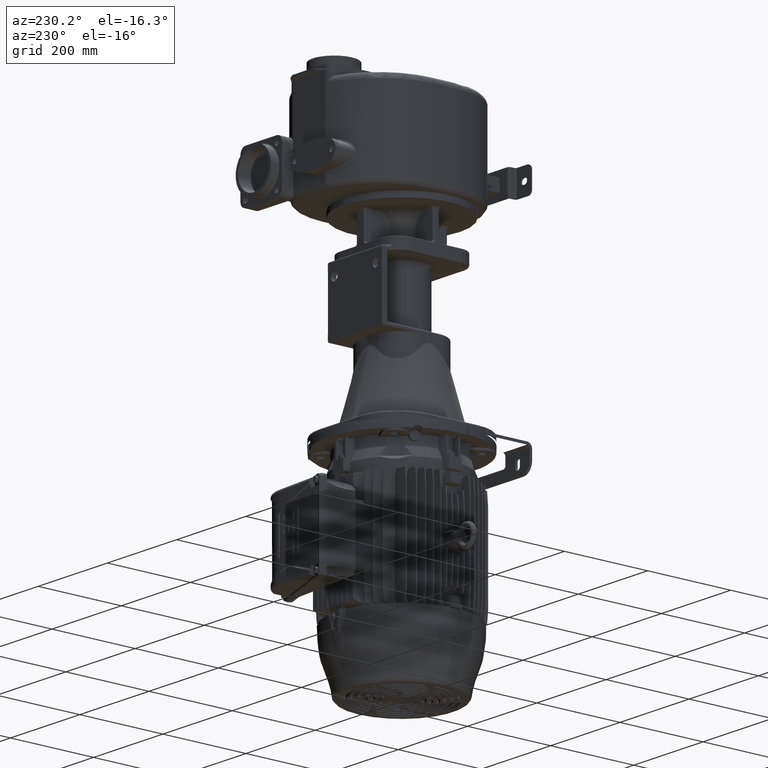
[diagram: clean part render]
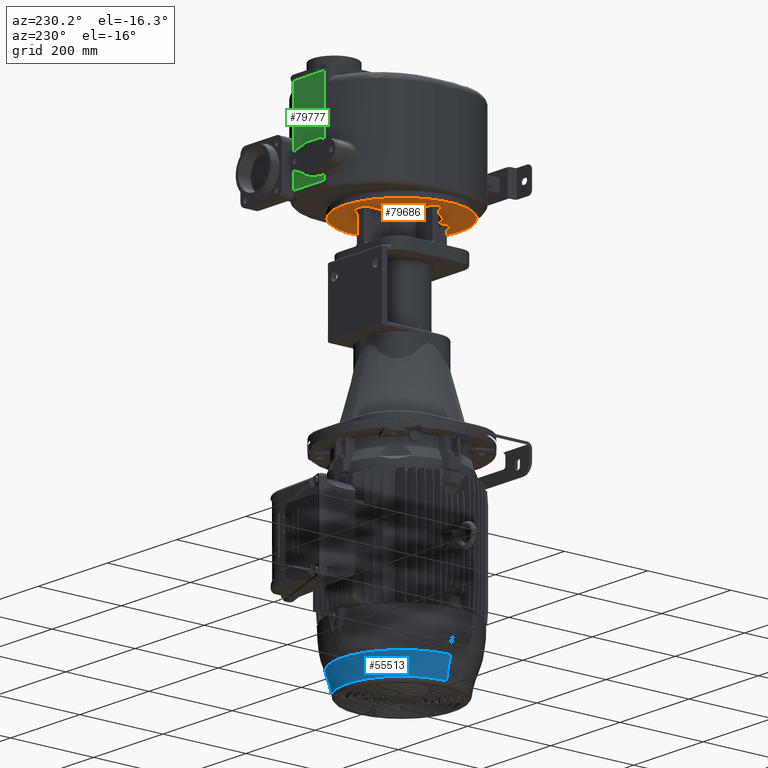
[diagram: same view with three faces highlighted in distinct colors, each labeled with its STEP entity id]
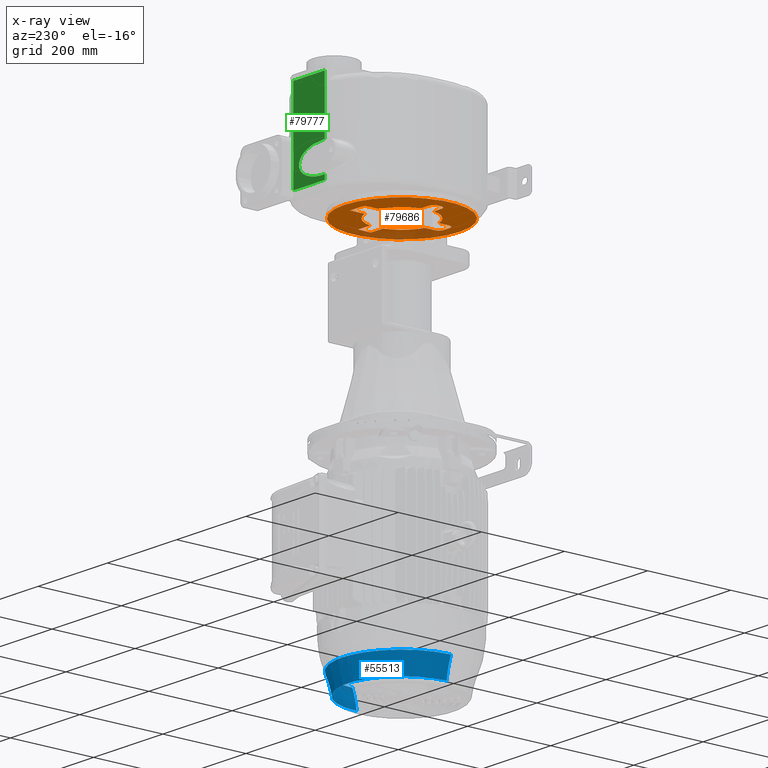
[diagram: x-ray of the same camera — body ghosted, the three highlighted faces saturated]
A machine part, auxiliary view with three faces highlighted in distinct colors.
The next image is the same camera in x-ray (body ghosted, the three faces saturated) — at least one of them is partly hidden behind the body in this view.
Their STEP definitions:

[orange] entity #79686 — the highlighted planar face has unit normal (0, 0, -1).
#24210=CARTESIAN_POINT('',(-2.296255940069E-14,1.58E2,-7.35E1));
#24211=DIRECTION('',(0.E0,0.E0,1.E0));
#24212=DIRECTION('',(0.E0,-1.E0,0.E0));
#24213=AXIS2_PLACEMENT_3D('',#24210,#24211,#24212);
#24215=CARTESIAN_POINT('',(-2.296255940069E-14,1.58E2,-7.35E1));
#24216=DIRECTION('',(0.E0,0.E0,1.E0));
#24217=DIRECTION('',(0.E0,1.E0,0.E0));
#24218=AXIS2_PLACEMENT_3D('',#24215,#24216,#24217);
#24220=DIRECTION('',(1.051396271926E-13,1.E0,1.000965111528E-8));
#24221=VECTOR('',#24220,2.385604670862E1);
#24222=CARTESIAN_POINT('',(-2.05E1,2.301439532913E2,-7.350000023879E1));
#24223=LINE('',#24222,#24221);
#24224=DIRECTION('',(1.E0,7.644459777854E-14,0.E0));
#24225=VECTOR('',#24224,2.899999999992E1);
#24226=CARTESIAN_POINT('',(-8.499999999919E0,2.66E2,-7.35E1));
#24227=LINE('',#24226,#24225);
#24228=DIRECTION('',(0.E0,-1.E0,-6.653160300334E-9));
#24229=VECTOR('',#24228,3.585604670857E1);
#24230=CARTESIAN_POINT('',(2.05E1,2.66E2,-7.35E1));
#24231=LINE('',#24230,#24229);
#24232=CARTESIAN_POINT('',(-2.296255940069E-14,1.58E2,-7.35E1));
#24233=DIRECTION('',(0.E0,0.E0,1.E0));
#24234=DIRECTION('',(9.784114108098E-1,2.066666668750E-1,0.E0));
#24235=AXIS2_PLACEMENT_3D('',#24232,#24233,#24234);
#24237=DIRECTION('',(1.E0,0.E0,7.285471637682E-9));
#24238=VECTOR('',#24237,3.461914420528E1);
#24239=CARTESIAN_POINT('',(7.338085579472E1,1.735E2,-7.350000025222E1));
#24240=LINE('',#24239,#24238);
#24241=DIRECTION('',(0.E0,-1.E0,0.E0));
#24242=VECTOR('',#24241,3.1E1);
#24243=CARTESIAN_POINT('',(1.08E2,1.735E2,-7.35E1));
#24244=LINE('',#24243,#24242);
#24245=DIRECTION('',(-1.E0,0.E0,-7.282940138331E-9));
#24246=VECTOR('',#24245,3.461914420529E1);
#24247=CARTESIAN_POINT('',(1.08E2,1.425E2,-7.35E1));
#24248=LINE('',#24247,#24246);
#24249=CARTESIAN_POINT('',(-2.296255940069E-14,1.58E2,-7.35E1));
#24250=DIRECTION('',(0.E0,0.E0,1.E0));
#24251=DIRECTION('',(2.733333336737E-1,-9.619193774443E-1,0.E0));
#24252=AXIS2_PLACEMENT_3D('',#24249,#24250,#24251);
#24254=DIRECTION('',(-1.054374731619E-13,-1.E0,1.000964396698E-8));
#24255=VECTOR('',#24254,2.385604670862E1);
#24256=CARTESIAN_POINT('',(2.05E1,8.585604670870E1,-7.350000023879E1));
#24257=LINE('',#24256,#24255);
#24258=DIRECTION('',(-1.E0,1.839051786690E-14,0.E0));
#24259=VECTOR('',#24258,1.699999999985E1);
#24260=CARTESIAN_POINT('',(8.499999999918E0,5.E1,-7.35E1));
#24261=LINE('',#24260,#24259);
#24262=DIRECTION('',(-9.218332752489E-14,1.E0,-9.999807306049E-9));
#24263=VECTOR('',#24262,2.385604670849E1);
#24264=CARTESIAN_POINT('',(-2.05E1,6.200000000008E1,-7.35E1));
#24265=LINE('',#24264,#24263);
#24266=CARTESIAN_POINT('',(-2.296255940069E-14,1.58E2,-7.35E1));
#24267=DIRECTION('',(0.E0,0.E0,-1.E0));
#24268=DIRECTION('',(-2.733333336719E-1,-9.619193774448E-1,0.E0));
#24269=AXIS2_PLACEMENT_3D('',#24266,#24267,#24268);
#24271=DIRECTION('',(-1.E0,1.105749363099E-13,1.115059270123E-8));
#24272=VECTOR('',#24271,2.261914420521E1);
#24273=CARTESIAN_POINT('',(-7.338085579472E1,1.425E2,-7.350000025222E1));
#24274=LINE('',#24273,#24272);
#24275=DIRECTION('',(4.263256414655E-14,1.E0,0.E0));
#24276=VECTOR('',#24275,6.999999999846E0);
#24277=CARTESIAN_POINT('',(-1.08E2,1.545000000001E2,-7.35E1));
#24278=LINE('',#24277,#24276);
#24279=DIRECTION('',(1.E0,9.800960263834E-14,-1.114671692406E-8));
#24280=VECTOR('',#24279,2.261914420521E1);
#24281=CARTESIAN_POINT('',(-9.599999999992E1,1.735E2,-7.35E1));
#24282=LINE('',#24281,#24280);
#24283=CARTESIAN_POINT('',(-2.296255940069E-14,1.58E2,-7.35E1));
#24284=DIRECTION('',(0.E0,0.E0,-1.E0));
#24285=DIRECTION('',(-9.784114108098E-1,2.066666668751E-1,0.E0));
#24286=AXIS2_PLACEMENT_3D('',#24283,#24284,#24285);
#29366=CARTESIAN_POINT('',(-7.338085579471E1,1.735E2,-7.350000025213E1));
#29489=CARTESIAN_POINT('',(-2.05E1,2.301439532913E2,-7.350000023879E1));
#29683=CARTESIAN_POINT('',(-8.5E0,2.54E2,-7.35E1));
#29684=DIRECTION('',(0.E0,0.E0,1.E0));
#29685=DIRECTION('',(0.E0,1.E0,0.E0));
#29686=AXIS2_PLACEMENT_3D('',#29683,#29684,#29685);
#29964=CARTESIAN_POINT('',(2.05E1,2.301439532914E2,-7.350000023856E1));
#30087=CARTESIAN_POINT('',(7.338085579472E1,1.735E2,-7.350000025222E1));
#30429=CARTESIAN_POINT('',(-9.6E1,1.615E2,-7.35E1));
#30430=DIRECTION('',(0.E0,0.E0,1.E0));
#30431=DIRECTION('',(0.E0,1.E0,0.E0));
#30432=AXIS2_PLACEMENT_3D('',#30429,#30430,#30431);
#30449=CARTESIAN_POINT('',(-9.6E1,1.545E2,-7.35E1));
#30450=DIRECTION('',(0.E0,0.E0,1.E0));
#30451=DIRECTION('',(-1.E0,0.E0,0.E0));
#30452=AXIS2_PLACEMENT_3D('',#30449,#30450,#30451);
#30637=CARTESIAN_POINT('',(-2.05E1,8.585604670857E1,-7.350000023856E1));
#30760=CARTESIAN_POINT('',(-7.338085579472E1,1.425E2,-7.350000025222E1));
#30904=CARTESIAN_POINT('',(-8.5E0,6.2E1,-7.35E1));
#30905=DIRECTION('',(0.E0,0.E0,1.E0));
#30906=DIRECTION('',(-1.E0,0.E0,0.E0));
#30907=AXIS2_PLACEMENT_3D('',#30904,#30905,#30906);
#30924=CARTESIAN_POINT('',(8.5E0,6.2E1,-7.35E1));
#30925=DIRECTION('',(0.E0,0.E0,1.E0));
#30926=DIRECTION('',(0.E0,-1.E0,0.E0));
#30927=AXIS2_PLACEMENT_3D('',#30924,#30925,#30926);
#31248=CARTESIAN_POINT('',(2.05E1,8.585604670870E1,-7.350000023879E1));
#43688=CARTESIAN_POINT('',(-4.567421827776E-14,1.9E1,-7.35E1));
#43689=CARTESIAN_POINT('',(1.677168998453E-14,2.97E2,-7.35E1));
#43690=VERTEX_POINT('',#43688);
#43691=VERTEX_POINT('',#43689);
#43693=VERTEX_POINT('',#31248);
#43696=VERTEX_POINT('',#30637);
#43701=VERTEX_POINT('',#30760);
#43704=VERTEX_POINT('',#29366);
#43709=VERTEX_POINT('',#29489);
#43712=VERTEX_POINT('',#29964);
#43717=VERTEX_POINT('',#30087);
#43722=CARTESIAN_POINT('',(7.338085581073E1,1.424999999844E2,-7.35E1));
#43723=VERTEX_POINT('',#43722);
#43724=CARTESIAN_POINT('',(2.05E1,6.200000000007E1,-7.35E1));
#43725=VERTEX_POINT('',#43724);
#43726=CARTESIAN_POINT('',(8.499999999918E0,5.E1,-7.35E1));
#43727=CARTESIAN_POINT('',(-8.499999999927E0,5.E1,-7.35E1));
#43728=VERTEX_POINT('',#43726);
#43729=VERTEX_POINT('',#43727);
#43730=CARTESIAN_POINT('',(-2.05E1,6.200000000008E1,-7.35E1));
#43731=VERTEX_POINT('',#43730);
#43732=CARTESIAN_POINT('',(-9.599999999993E1,1.425E2,-7.35E1));
#43733=VERTEX_POINT('',#43732);
#43734=CARTESIAN_POINT('',(-1.08E2,1.545000000001E2,-7.35E1));
#43735=CARTESIAN_POINT('',(-1.08E2,1.614999999999E2,-7.35E1));
#43736=VERTEX_POINT('',#43734);
#43737=VERTEX_POINT('',#43735);
#43738=CARTESIAN_POINT('',(-9.599999999992E1,1.735E2,-7.35E1));
#43739=VERTEX_POINT('',#43738);
#43740=CARTESIAN_POINT('',(-2.05E1,2.539999999999E2,-7.35E1));
#43741=VERTEX_POINT('',#43740);
#43742=CARTESIAN_POINT('',(-8.499999999919E0,2.66E2,-7.35E1));
#43743=CARTESIAN_POINT('',(2.05E1,2.66E2,-7.35E1));
#43744=VERTEX_POINT('',#43742);
#43745=VERTEX_POINT('',#43743);
#43746=CARTESIAN_POINT('',(1.08E2,1.735E2,-7.35E1));
#43747=VERTEX_POINT('',#43746);
#43748=CARTESIAN_POINT('',(1.08E2,1.425E2,-7.35E1));
#43749=VERTEX_POINT('',#43748);
#79632=CARTESIAN_POINT('',(-2.296255940069E-14,1.58E2,-7.35E1));
#79633=DIRECTION('',(0.E0,0.E0,-1.E0));
#79634=DIRECTION('',(0.E0,1.E0,0.E0));
#79635=AXIS2_PLACEMENT_3D('',#79632,#79633,#79634);
#79636=PLANE('',#79635);
#79638=ORIENTED_EDGE('',*,*,#79637,.T.);
#79640=ORIENTED_EDGE('',*,*,#79639,.T.);
#79641=EDGE_LOOP('',(#79638,#79640));
#79642=FACE_OUTER_BOUND('',#79641,.F.);
#79644=ORIENTED_EDGE('',*,*,#79643,.T.);
#79646=ORIENTED_EDGE('',*,*,#79645,.F.);
#79648=ORIENTED_EDGE('',*,*,#79647,.T.);
#79650=ORIENTED_EDGE('',*,*,#79649,.T.);
#79652=ORIENTED_EDGE('',*,*,#79651,.F.);
#79654=ORIENTED_EDGE('',*,*,#79653,.T.);
#79655=ORIENTED_EDGE('',*,*,#79623,.T.);
#79657=ORIENTED_EDGE('',*,*,#79656,.T.);
#79659=ORIENTED_EDGE('',*,*,#79658,.F.);
#79661=ORIENTED_EDGE('',*,*,#79660,.T.);
#79663=ORIENTED_EDGE('',*,*,#79662,.F.);
#79665=ORIENTED_EDGE('',*,*,#79664,.T.);
#79667=ORIENTED_EDGE('',*,*,#79666,.F.);
#79669=ORIENTED_EDGE('',*,*,#79668,.T.);
#79671=ORIENTED_EDGE('',*,*,#79670,.T.);
#79673=ORIENTED_EDGE('',*,*,#79672,.T.);
#79675=ORIENTED_EDGE('',*,*,#79674,.F.);
#79677=ORIENTED_EDGE('',*,*,#79676,.T.);
#79679=ORIENTED_EDGE('',*,*,#79678,.F.);
#79681=ORIENTED_EDGE('',*,*,#79680,.T.);
#79683=ORIENTED_EDGE('',*,*,#79682,.T.);
#79684=EDGE_LOOP('',(#79644,#79646,#79648,#79650,#79652,#79654,#79655,#79657,
#79659,#79661,#79663,#79665,#79667,#79669,#79671,#79673,#79675,#79677,#79679,
#79681,#79683));
#79685=FACE_BOUND('',#79684,.F.);
#79686=ADVANCED_FACE('',(#79642,#79685),#79636,.T.);
#24214=CIRCLE('',#24213,1.39E2);
#24219=CIRCLE('',#24218,1.39E2);
#24236=CIRCLE('',#24235,7.5E1);
#24253=CIRCLE('',#24252,7.5E1);
#24270=CIRCLE('',#24269,7.5E1);
#24287=CIRCLE('',#24286,7.5E1);
#29687=CIRCLE('',#29686,1.2E1);
#30433=CIRCLE('',#30432,1.2E1);
#30453=CIRCLE('',#30452,1.2E1);
#30908=CIRCLE('',#30907,1.2E1);
#30928=CIRCLE('',#30927,1.2E1);
#79623=EDGE_CURVE('',#43747,#43749,#24244,.T.);
#79637=EDGE_CURVE('',#43690,#43691,#24214,.T.);
#79639=EDGE_CURVE('',#43691,#43690,#24219,.T.);
#79643=EDGE_CURVE('',#43709,#43741,#24223,.T.);
#79645=EDGE_CURVE('',#43744,#43741,#29687,.T.);
#79647=EDGE_CURVE('',#43744,#43745,#24227,.T.);
#79649=EDGE_CURVE('',#43745,#43712,#24231,.T.);
#79651=EDGE_CURVE('',#43717,#43712,#24236,.T.);
#79653=EDGE_CURVE('',#43717,#43747,#24240,.T.);
#79656=EDGE_CURVE('',#43749,#43723,#24248,.T.);
#79658=EDGE_CURVE('',#43693,#43723,#24253,.T.);
#79660=EDGE_CURVE('',#43693,#43725,#24257,.T.);
#79662=EDGE_CURVE('',#43728,#43725,#30928,.T.);
#79664=EDGE_CURVE('',#43728,#43729,#24261,.T.);
#79666=EDGE_CURVE('',#43731,#43729,#30908,.T.);
#79668=EDGE_CURVE('',#43731,#43696,#24265,.T.);
#79670=EDGE_CURVE('',#43696,#43701,#24270,.T.);
#79672=EDGE_CURVE('',#43701,#43733,#24274,.T.);
#79674=EDGE_CURVE('',#43736,#43733,#30453,.T.);
#79676=EDGE_CURVE('',#43736,#43737,#24278,.T.);
#79678=EDGE_CURVE('',#43739,#43737,#30433,.T.);
#79680=EDGE_CURVE('',#43739,#43704,#24282,.T.);
#79682=EDGE_CURVE('',#43704,#43709,#24287,.T.);

[blue] entity #55513 — the highlighted toroidal blend (fillet) surface has major radius 308.616 mm and minor (blend) radius 180 mm.
#5170=CARTESIAN_POINT('',(-3.077530922771E2,1.58E2,-1.014636955690E3));
#5171=DIRECTION('',(0.E0,-1.E0,0.E0));
#5172=DIRECTION('',(9.927184655179E-1,0.E0,1.204576615238E-1));
#5173=AXIS2_PLACEMENT_3D('',#5170,#5171,#5172);
#5175=CARTESIAN_POINT('',(8.634161712648E-1,1.58E2,-9.453489229696E2));
#5176=DIRECTION('',(0.E0,0.E0,-1.E0));
#5177=DIRECTION('',(-1.E0,0.E0,0.E0));
#5178=AXIS2_PLACEMENT_3D('',#5175,#5176,#5177);
#5185=CARTESIAN_POINT('',(3.094799246197E2,1.58E2,-1.014636955690E3));
#5186=DIRECTION('',(0.E0,1.E0,0.E0));
#5187=DIRECTION('',(-9.927184655179E-1,0.E0,1.204576615238E-1));
#5188=AXIS2_PLACEMENT_3D('',#5185,#5186,#5187);
#8276=CARTESIAN_POINT('',(8.634161712647E-1,1.58E2,-9.929545766152E2));
#8277=DIRECTION('',(0.E0,0.E0,-1.E0));
#8278=DIRECTION('',(-1.E0,0.E0,0.E0));
#8279=AXIS2_PLACEMENT_3D('',#8276,#8277,#8278);
#44594=CARTESIAN_POINT('',(1.307906008264E2,1.58E2,-9.929545766152E2));
#44596=VERTEX_POINT('',#44594);
#44818=CARTESIAN_POINT('',(-1.290637684839E2,1.58E2,-9.929545766152E2));
#44819=VERTEX_POINT('',#44818);
#45519=CARTESIAN_POINT('',(1.433499498355E2,1.58E2,-9.453489229696E2));
#45520=CARTESIAN_POINT('',(-1.416231174929E2,1.58E2,-9.453489229696E2));
#45521=VERTEX_POINT('',#45519);
#45522=VERTEX_POINT('',#45520);
#55499=CARTESIAN_POINT('',(8.634161712647E-1,1.58E2,-1.014636955690E3));
#55500=DIRECTION('',(0.E0,0.E0,1.E0));
#55501=DIRECTION('',(1.E0,0.E0,0.E0));
#55502=AXIS2_PLACEMENT_3D('',#55499,#55500,#55501);
#55503=TOROIDAL_SURFACE('',#55502,3.086165084484E2,1.8E2);
#55505=ORIENTED_EDGE('',*,*,#55504,.F.);
#55507=ORIENTED_EDGE('',*,*,#55506,.T.);
#55509=ORIENTED_EDGE('',*,*,#55508,.T.);
#55510=ORIENTED_EDGE('',*,*,#55431,.F.);
#55511=EDGE_LOOP('',(#55505,#55507,#55509,#55510));
#55512=FACE_OUTER_BOUND('',#55511,.F.);
#55513=ADVANCED_FACE('',(#55512),#55503,.F.);
#5174=CIRCLE('',#5173,1.8E2);
#5179=CIRCLE('',#5178,1.424865336642E2);
#5189=CIRCLE('',#5188,1.8E2);
#8280=CIRCLE('',#8279,1.299271846552E2);
#55431=EDGE_CURVE('',#45522,#45521,#5179,.T.);
#55504=EDGE_CURVE('',#44819,#45522,#5174,.T.);
#55506=EDGE_CURVE('',#44819,#44596,#8280,.T.);
#55508=EDGE_CURVE('',#44596,#45521,#5189,.T.);

[green] entity #79777 — the highlighted planar face has unit normal (0, 1, 0).
#24348=DIRECTION('',(-1.E0,0.E0,0.E0));
#24349=VECTOR('',#24348,9.E1);
#24350=CARTESIAN_POINT('',(6.1E1,3.68E2,1.66E2));
#24351=LINE('',#24350,#24349);
#24352=DIRECTION('',(7.394403506979E-11,-3.179514029851E-7,-9.999999999999E-1));
#24353=VECTOR('',#24352,1.320864245100E2);
#24354=CARTESIAN_POINT('',(-2.9E1,3.68E2,1.66E2));
#24355=LINE('',#24354,#24353);
#24356=CARTESIAN_POINT('',(-2.899999999023E1,3.679999580029E2,
3.391357549005E1));
#24357=CARTESIAN_POINT('',(-2.805778170836E1,3.679999571674E2,
3.394619893582E1));
#24358=CARTESIAN_POINT('',(-2.617164174415E1,3.680000198787E2,
3.399300609268E1));
#24359=CARTESIAN_POINT('',(-2.333312696515E1,3.679999946735E2,
3.400772338641E1));
#24360=CARTESIAN_POINT('',(-2.049787171326E1,3.680000014272E2,
3.396691100287E1));
#24361=CARTESIAN_POINT('',(-1.767386874362E1,3.679999996176E2,
3.387079183421E1));
#24362=CARTESIAN_POINT('',(-1.487020655710E1,3.680000001025E2,
3.372012210979E1));
#24363=CARTESIAN_POINT('',(-1.209580023952E1,3.679999999725E2,
3.351612730048E1));
#24364=CARTESIAN_POINT('',(-9.360443407488E0,3.680000000074E2,
3.326032002958E1));
#24365=CARTESIAN_POINT('',(-6.673962327338E0,3.679999999980E2,
3.295510517698E1));
#24366=CARTESIAN_POINT('',(-4.043622725665E0,3.680000000005E2,
3.260270834170E1));
#24367=CARTESIAN_POINT('',(-1.476039448096E0,3.679999999999E2,
3.220591864143E1));
#24368=CARTESIAN_POINT('',(1.022807764644E0,3.68E2,3.176759515301E1));
#24369=CARTESIAN_POINT('',(3.447652991960E0,3.68E2,3.129082778318E1));
#24370=CARTESIAN_POINT('',(5.793897197045E0,3.68E2,3.077894909301E1));
#24371=CARTESIAN_POINT('',(8.058261796982E0,3.68E2,3.023511891826E1));
#24372=CARTESIAN_POINT('',(1.023793996254E1,3.68E2,2.966276070077E1));
#24373=CARTESIAN_POINT('',(1.233125480472E1,3.68E2,2.906501247706E1));
#24374=CARTESIAN_POINT('',(1.433707938380E1,3.68E2,2.844513616914E1));
#24375=CARTESIAN_POINT('',(1.625517715669E1,3.68E2,2.780610539445E1));
#24376=CARTESIAN_POINT('',(1.808586355674E1,3.68E2,2.715083772466E1));
#24377=CARTESIAN_POINT('',(1.983002871310E1,3.68E2,2.648205619385E1));
#24378=CARTESIAN_POINT('',(2.148906157857E1,3.68E2,2.580225548728E1));
#24379=CARTESIAN_POINT('',(2.306472736026E1,3.68E2,2.511383404907E1));
#24380=CARTESIAN_POINT('',(2.455914795030E1,3.68E2,2.441884736898E1));
#24381=CARTESIAN_POINT('',(2.597472847135E1,3.68E2,2.371931684881E1));
#24382=CARTESIAN_POINT('',(2.731403966599E1,3.68E2,2.301687789007E1));
#24383=CARTESIAN_POINT('',(2.857989864447E1,3.68E2,2.231316229496E1));
#24384=CARTESIAN_POINT('',(2.977510273023E1,3.68E2,2.160941754698E1));
#24385=CARTESIAN_POINT('',(3.090268809175E1,3.68E2,2.090688828240E1));
#24386=CARTESIAN_POINT('',(3.196549567596E1,3.68E2,2.020652742708E1));
#24387=CARTESIAN_POINT('',(3.296656156938E1,3.68E2,1.950916286939E1));
#24388=CARTESIAN_POINT('',(3.390882219587E1,3.68E2,1.881553122052E1));
#24389=CARTESIAN_POINT('',(3.479508306882E1,3.68E2,1.812606541529E1));
#24390=CARTESIAN_POINT('',(3.562833899628E1,3.68E2,1.744116473568E1));
#24391=CARTESIAN_POINT('',(3.641113536491E1,3.68E2,1.676120617822E1));
#24392=CARTESIAN_POINT('',(3.714606394504E1,3.68E2,1.608629487866E1));
#24393=CARTESIAN_POINT('',(3.783569803552E1,3.68E2,1.541655783817E1));
#24394=CARTESIAN_POINT('',(3.848218460898E1,3.68E2,1.475215778849E1));
#24395=CARTESIAN_POINT('',(3.908776851032E1,3.68E2,1.409300045511E1));
#24396=CARTESIAN_POINT('',(3.965452642540E1,3.68E2,1.343908082795E1));
#24397=CARTESIAN_POINT('',(4.018428632356E1,3.68E2,1.279036345463E1));
#24398=CARTESIAN_POINT('',(4.067893269789E1,3.68E2,1.214661433373E1));
#24399=CARTESIAN_POINT('',(4.114007637048E1,3.68E2,1.150777854371E1));
#24400=CARTESIAN_POINT('',(4.156925872776E1,3.68E2,1.087367259689E1));
#24401=CARTESIAN_POINT('',(4.196794428490E1,3.68E2,1.024404909128E1));
#24402=CARTESIAN_POINT('',(4.233742052460E1,3.68E2,9.618776409693E0));
#24403=CARTESIAN_POINT('',(4.267894860669E1,3.68E2,8.997552243037E0));
#24404=CARTESIAN_POINT('',(4.299361041587E1,3.68E2,8.380181105341E0));
#24405=CARTESIAN_POINT('',(4.328244328687E1,3.68E2,7.766448814346E0));
#24406=CARTESIAN_POINT('',(4.354638363460E1,3.68E2,7.156032827319E0));
#24407=CARTESIAN_POINT('',(4.378631512452E1,3.68E2,6.548633846250E0));
#24408=CARTESIAN_POINT('',(4.400302895729E1,3.680000000001E2,5.943875813439E0));
#24409=CARTESIAN_POINT('',(4.419709494256E1,3.679999999995E2,5.341683305394E0));
#24410=CARTESIAN_POINT('',(4.436911345799E1,3.680000000020E2,4.742032186117E0));
#24411=CARTESIAN_POINT('',(4.451962677171E1,3.679999999926E2,4.144580168270E0));
#24412=CARTESIAN_POINT('',(4.464917637211E1,3.680000000276E2,3.548702744713E0));
#24413=CARTESIAN_POINT('',(4.475827317488E1,3.679999998970E2,2.953669732333E0));
#24414=CARTESIAN_POINT('',(4.484708224837E1,3.680000003843E2,2.359481014939E0));
#24415=CARTESIAN_POINT('',(4.491575197636E1,3.679999985657E2,1.766612213868E0));
#24416=CARTESIAN_POINT('',(4.496454016457E1,3.680000053528E2,1.175438272550E0));
#24417=CARTESIAN_POINT('',(4.499358558863E1,3.679999800230E2,
5.862688741554E-1));
#24418=CARTESIAN_POINT('',(4.499999851524E1,3.680000430444E2,
1.951628121436E-1));
#24419=CARTESIAN_POINT('',(4.499999999859E1,3.680000421837E2,
3.229984752795E-8));
#24421=CARTESIAN_POINT('',(4.499999999859E1,3.680000421837E2,
3.229984752795E-8));
#24422=CARTESIAN_POINT('',(4.499991717728E1,3.680000846719E2,
-1.977121542793E-1));
#24423=CARTESIAN_POINT('',(4.499287504298E1,3.679999607036E2,
-5.931273361817E-1));
#24424=CARTESIAN_POINT('',(4.496309977170E1,3.680000105294E2,
-1.186130531827E0));
#24425=CARTESIAN_POINT('',(4.491362013085E1,3.679999971786E2,
-1.779291982977E0));
#24426=CARTESIAN_POINT('',(4.484453303081E1,3.680000007560E2,
-2.372772988027E0));
#24427=CARTESIAN_POINT('',(4.475561155120E1,3.679999997974E2,
-2.966732627488E0));
#24428=CARTESIAN_POINT('',(4.464657165494E1,3.680000000543E2,
-3.561284167690E0));
#24429=CARTESIAN_POINT('',(4.451692125068E1,3.679999999855E2,
-4.156479856230E0));
#24430=CARTESIAN_POINT('',(4.436634234459E1,3.680000000039E2,
-4.752368932680E0));
#24431=CARTESIAN_POINT('',(4.419447313866E1,3.679999999990E2,
-5.349898466484E0));
#24432=CARTESIAN_POINT('',(4.400066305872E1,3.680000000003E2,
-5.950076615326E0));
#24433=CARTESIAN_POINT('',(4.378408419129E1,3.679999999999E2,
-6.553850099955E0));
#24434=CARTESIAN_POINT('',(4.354388984662E1,3.68E2,-7.161625862714E0));
#24435=CARTESIAN_POINT('',(4.327957175196E1,3.68E2,-7.772732830080E0));
#24436=CARTESIAN_POINT('',(4.299056442231E1,3.68E2,-8.386513620580E0));
#24437=CARTESIAN_POINT('',(4.267637998839E1,3.68E2,-9.002476161183E0));
#24438=CARTESIAN_POINT('',(4.233560951251E1,3.68E2,-9.621972277686E0));
#24439=CARTESIAN_POINT('',(4.196664363602E1,3.68E2,-1.024615050641E1));
#24440=CARTESIAN_POINT('',(4.156795128290E1,3.68E2,-1.087563111310E1));
#24441=CARTESIAN_POINT('',(4.113855719625E1,3.68E2,-1.150994778726E1));
#24442=CARTESIAN_POINT('',(4.067753567791E1,3.68E2,-1.214854661752E1));
#24443=CARTESIAN_POINT('',(4.018323568783E1,3.68E2,-1.279175227724E1));
#24444=CARTESIAN_POINT('',(3.965370875164E1,3.68E2,-1.344008202985E1));
#24445=CARTESIAN_POINT('',(3.908705957129E1,3.68E2,-1.409378511533E1));
#24446=CARTESIAN_POINT('',(3.848147931610E1,3.68E2,-1.475290486599E1));
#24447=CARTESIAN_POINT('',(3.783478661098E1,3.68E2,-1.541750515512E1));
#24448=CARTESIAN_POINT('',(3.714467476466E1,3.68E2,-1.608761698792E1));
#24449=CARTESIAN_POINT('',(3.640902686076E1,3.68E2,-1.676307262907E1));
#24450=CARTESIAN_POINT('',(3.562543516414E1,3.68E2,-1.744366748842E1));
#24451=CARTESIAN_POINT('',(3.479112672732E1,3.68E2,-1.812923884018E1));
#24452=CARTESIAN_POINT('',(3.390363356088E1,3.68E2,-1.881943784553E1));
#24453=CARTESIAN_POINT('',(3.296015993261E1,3.68E2,-1.951379875039E1));
#24454=CARTESIAN_POINT('',(3.195771236492E1,3.68E2,-2.021178469124E1));
#24455=CARTESIAN_POINT('',(3.089357711841E1,3.68E2,-2.091274168444E1));
#24456=CARTESIAN_POINT('',(2.976466447569E1,3.68E2,-2.161575745711E1));
#24457=CARTESIAN_POINT('',(2.856813085870E1,3.68E2,-2.231988761345E1));
#24458=CARTESIAN_POINT('',(2.730103699085E1,3.68E2,-2.302392292500E1));
#24459=CARTESIAN_POINT('',(2.596048372619E1,3.68E2,-2.372655778410E1));
#24460=CARTESIAN_POINT('',(2.454374634364E1,3.68E2,-2.442624751267E1));
#24461=CARTESIAN_POINT('',(2.304821807300E1,3.68E2,-2.512126989646E1));
#24462=CARTESIAN_POINT('',(2.147154730019E1,3.68E2,-2.580967039342E1));
#24463=CARTESIAN_POINT('',(1.981158029648E1,3.68E2,-2.648937187193E1));
#24464=CARTESIAN_POINT('',(1.806660633037E1,3.68E2,-2.715796223118E1));
#24465=CARTESIAN_POINT('',(1.623524194102E1,3.68E2,-2.781300098243E1));
#24466=CARTESIAN_POINT('',(1.431673603651E1,3.68E2,-2.845164204624E1));
#24467=CARTESIAN_POINT('',(1.231075398484E1,3.68E2,-2.907111786090E1));
#24468=CARTESIAN_POINT('',(1.021771104995E1,3.68E2,-2.966826947811E1));
#24469=CARTESIAN_POINT('',(8.038552671041E0,3.68E2,-3.024008394453E1));
#24470=CARTESIAN_POINT('',(5.775157738586E0,3.68E2,-3.078320303555E1));
#24471=CARTESIAN_POINT('',(3.430017056676E0,3.68E2,-3.129449344043E1));
#24472=CARTESIAN_POINT('',(1.006629799048E0,3.68E2,-3.177056517953E1));
#24473=CARTESIAN_POINT('',(-1.490843489220E0,3.679999999999E2,
-3.220836052957E1));
#24474=CARTESIAN_POINT('',(-4.056908175188E0,3.680000000005E2,
-3.260459909546E1));
#24475=CARTESIAN_POINT('',(-6.685759538500E0,3.679999999980E2,
-3.295654971705E1));
#24476=CARTESIAN_POINT('',(-9.370667546187E0,3.680000000073E2,
-3.326137029707E1));
#24477=CARTESIAN_POINT('',(-1.210458160075E1,3.679999999726E2,
-3.351684131583E1));
#24478=CARTESIAN_POINT('',(-1.487763475927E1,3.680000001024E2,
-3.372058689461E1));
#24479=CARTESIAN_POINT('',(-1.767986691086E1,3.679999996180E2,
-3.387104358642E1));
#24480=CARTESIAN_POINT('',(-2.050238311643E1,3.680000014258E2,
-3.396700533749E1));
#24481=CARTESIAN_POINT('',(-2.333612900746E1,3.679999946789E2,
-3.400772984790E1));
#24482=CARTESIAN_POINT('',(-2.617313242005E1,3.680000198585E2,
-3.399297674580E1));
#24483=CARTESIAN_POINT('',(-2.805827724222E1,3.679999572110E2,
-3.394618210398E1));
#24484=CARTESIAN_POINT('',(-2.899999998027E1,3.679999580924E2,
-3.391357549040E1));
#24486=DIRECTION('',(-1.083732300026E-9,3.780081996760E-6,-9.999999999929E-1));
#24487=VECTOR('',#24486,1.108642450968E1);
#24488=CARTESIAN_POINT('',(-2.899999998027E1,3.679999580924E2,
-3.391357549040E1));
#24489=LINE('',#24488,#24487);
#24490=DIRECTION('',(1.E0,0.E0,0.E0));
#24491=VECTOR('',#24490,8.999999998182E1);
#24492=CARTESIAN_POINT('',(-2.899999999228E1,3.68E2,-4.5E1));
#24493=LINE('',#24492,#24491);
#24494=DIRECTION('',(-4.960238223321E-11,0.E0,-1.E0));
#24495=VECTOR('',#24494,2.11E2);
#24496=CARTESIAN_POINT('',(6.1E1,3.68E2,1.66E2));
#24497=LINE('',#24496,#24495);
#26700=CARTESIAN_POINT('',(-2.899999998027E1,3.679999580924E2,
-3.391357549040E1));
#43133=CARTESIAN_POINT('',(-2.899999999228E1,3.68E2,-4.5E1));
#43134=CARTESIAN_POINT('',(6.099999998953E1,3.68E2,-4.5E1));
#43135=VERTEX_POINT('',#43133);
#43136=VERTEX_POINT('',#43134);
#43169=VERTEX_POINT('',#26700);
#43172=VERTEX_POINT('',#24421);
#43177=VERTEX_POINT('',#24356);
#43441=CARTESIAN_POINT('',(6.1E1,3.68E2,1.66E2));
#43442=CARTESIAN_POINT('',(-2.9E1,3.68E2,1.66E2));
#43443=VERTEX_POINT('',#43441);
#43444=VERTEX_POINT('',#43442);
#79757=CARTESIAN_POINT('',(7.6E1,3.68E2,1.66E2));
#79758=DIRECTION('',(0.E0,1.E0,0.E0));
#79759=DIRECTION('',(-1.E0,0.E0,0.E0));
#79760=AXIS2_PLACEMENT_3D('',#79757,#79758,#79759);
#79761=PLANE('',#79760);
#79763=ORIENTED_EDGE('',*,*,#79762,.T.);
#79765=ORIENTED_EDGE('',*,*,#79764,.T.);
#79767=ORIENTED_EDGE('',*,*,#79766,.T.);
#79769=ORIENTED_EDGE('',*,*,#79768,.T.);
#79771=ORIENTED_EDGE('',*,*,#79770,.T.);
#79772=ORIENTED_EDGE('',*,*,#79747,.T.);
#79774=ORIENTED_EDGE('',*,*,#79773,.F.);
#79775=EDGE_LOOP('',(#79763,#79765,#79767,#79769,#79771,#79772,#79774));
#79776=FACE_OUTER_BOUND('',#79775,.F.);
#79777=ADVANCED_FACE('',(#79776),#79761,.T.);
#24420=B_SPLINE_CURVE_WITH_KNOTS('',3,(#24356,#24357,#24358,#24359,#24360,
#24361,#24362,#24363,#24364,#24365,#24366,#24367,#24368,#24369,#24370,#24371,
#24372,#24373,#24374,#24375,#24376,#24377,#24378,#24379,#24380,#24381,#24382,
#24383,#24384,#24385,#24386,#24387,#24388,#24389,#24390,#24391,#24392,#24393,
#24394,#24395,#24396,#24397,#24398,#24399,#24400,#24401,#24402,#24403,#24404,
#24405,#24406,#24407,#24408,#24409,#24410,#24411,#24412,#24413,#24414,#24415,
#24416,#24417,#24418,#24419),.UNSPECIFIED.,.F.,.F.,(4,1,1,1,1,1,1,1,1,1,1,1,1,1,
1,1,1,1,1,1,1,1,1,1,1,1,1,1,1,1,1,1,1,1,1,1,1,1,1,1,1,1,1,1,1,1,1,1,1,1,1,1,1,1,
1,1,1,1,1,1,1,4),(0.E0,1.639344262295E-2,3.278688524590E-2,4.918032786885E-2,
6.557377049180E-2,8.196721311475E-2,9.836065573770E-2,1.147540983607E-1,
1.311475409836E-1,1.475409836066E-1,1.639344262295E-1,1.803278688525E-1,
1.967213114754E-1,2.131147540984E-1,2.295081967213E-1,2.459016393443E-1,
2.622950819672E-1,2.786885245902E-1,2.950819672131E-1,3.114754098361E-1,
3.278688524590E-1,3.442622950820E-1,3.606557377049E-1,3.770491803279E-1,
3.934426229508E-1,4.098360655738E-1,4.262295081967E-1,4.426229508197E-1,
4.590163934426E-1,4.754098360656E-1,4.918032786885E-1,5.081967213115E-1,
5.245901639344E-1,5.409836065574E-1,5.573770491803E-1,5.737704918033E-1,
5.901639344262E-1,6.065573770492E-1,6.229508196721E-1,6.393442622951E-1,
6.557377049180E-1,6.721311475410E-1,6.885245901639E-1,7.049180327869E-1,
7.213114754098E-1,7.377049180328E-1,7.540983606557E-1,7.704918032787E-1,
7.868852459016E-1,8.032786885246E-1,8.196721311475E-1,8.360655737705E-1,
8.524590163934E-1,8.688524590164E-1,8.852459016393E-1,9.016393442623E-1,
9.180327868852E-1,9.344262295082E-1,9.508196721311E-1,9.672131147541E-1,
9.836065573770E-1,1.E0),.UNSPECIFIED.);
#24485=B_SPLINE_CURVE_WITH_KNOTS('',3,(#24421,#24422,#24423,#24424,#24425,
#24426,#24427,#24428,#24429,#24430,#24431,#24432,#24433,#24434,#24435,#24436,
#24437,#24438,#24439,#24440,#24441,#24442,#24443,#24444,#24445,#24446,#24447,
#24448,#24449,#24450,#24451,#24452,#24453,#24454,#24455,#24456,#24457,#24458,
#24459,#24460,#24461,#24462,#24463,#24464,#24465,#24466,#24467,#24468,#24469,
#24470,#24471,#24472,#24473,#24474,#24475,#24476,#24477,#24478,#24479,#24480,
#24481,#24482,#24483,#24484),.UNSPECIFIED.,.F.,.F.,(4,1,1,1,1,1,1,1,1,1,1,1,1,1,
1,1,1,1,1,1,1,1,1,1,1,1,1,1,1,1,1,1,1,1,1,1,1,1,1,1,1,1,1,1,1,1,1,1,1,1,1,1,1,1,
1,1,1,1,1,1,1,4),(0.E0,1.639344262295E-2,3.278688524590E-2,4.918032786885E-2,
6.557377049180E-2,8.196721311475E-2,9.836065573770E-2,1.147540983607E-1,
1.311475409836E-1,1.475409836066E-1,1.639344262295E-1,1.803278688525E-1,
1.967213114754E-1,2.131147540984E-1,2.295081967213E-1,2.459016393443E-1,
2.622950819672E-1,2.786885245902E-1,2.950819672131E-1,3.114754098361E-1,
3.278688524590E-1,3.442622950820E-1,3.606557377049E-1,3.770491803279E-1,
3.934426229508E-1,4.098360655738E-1,4.262295081967E-1,4.426229508197E-1,
4.590163934426E-1,4.754098360656E-1,4.918032786885E-1,5.081967213115E-1,
5.245901639344E-1,5.409836065574E-1,5.573770491803E-1,5.737704918033E-1,
5.901639344262E-1,6.065573770492E-1,6.229508196721E-1,6.393442622951E-1,
6.557377049180E-1,6.721311475410E-1,6.885245901639E-1,7.049180327869E-1,
7.213114754098E-1,7.377049180328E-1,7.540983606557E-1,7.704918032787E-1,
7.868852459016E-1,8.032786885246E-1,8.196721311475E-1,8.360655737705E-1,
8.524590163934E-1,8.688524590164E-1,8.852459016393E-1,9.016393442623E-1,
9.180327868852E-1,9.344262295082E-1,9.508196721311E-1,9.672131147541E-1,
9.836065573770E-1,1.E0),.UNSPECIFIED.);
#79747=EDGE_CURVE('',#43135,#43136,#24493,.T.);
#79762=EDGE_CURVE('',#43443,#43444,#24351,.T.);
#79764=EDGE_CURVE('',#43444,#43177,#24355,.T.);
#79766=EDGE_CURVE('',#43177,#43172,#24420,.T.);
#79768=EDGE_CURVE('',#43172,#43169,#24485,.T.);
#79770=EDGE_CURVE('',#43169,#43135,#24489,.T.);
#79773=EDGE_CURVE('',#43443,#43136,#24497,.T.);